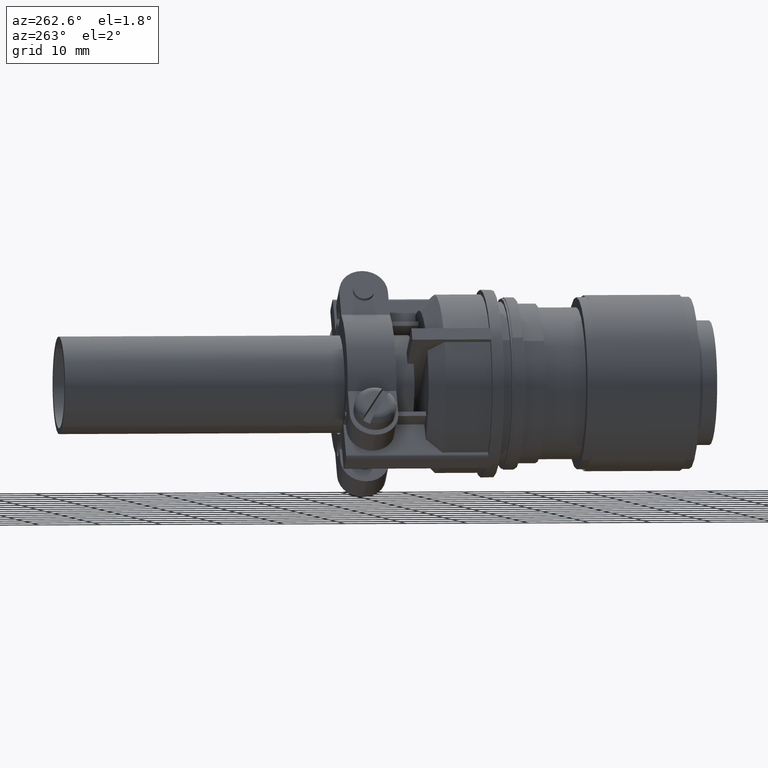
[diagram: clean part render]
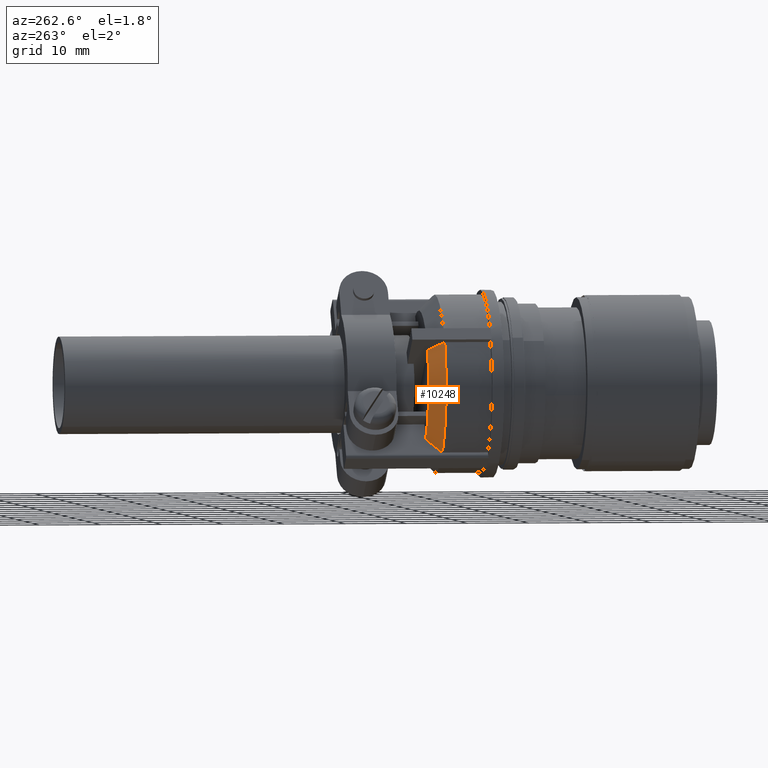
[diagram: same view with one face highlighted and labeled with its STEP entity id]
A machine part, auxiliary view. The second image highlights one B-rep face of the part: STEP entity #10248.
In plain terms, the highlighted conical surface has half-angle 45 deg.
Its self-contained STEP definition (entity closure, byte-faithful):
#1561 = AXIS2_PLACEMENT_3D ( 'NONE', #14280, #14281, #14282 ) ;
#2483 = AXIS2_PLACEMENT_3D ( 'NONE', #4530, #4533, #4536 ) ;
#3634 = CIRCLE ( 'NONE', #1561, 0.5699999999999996200 ) ;
#3728 = DIRECTION ( 'NONE',  ( 1.000000000000000000, 0.0000000000000000000, 0.0000000000000000000 ) ) ;
#3732 = DIRECTION ( 'NONE',  ( 0.0000000000000000000, 0.0000000000000000000, 1.000000000000000000 ) ) ;
#3736 = CARTESIAN_POINT ( 'NONE',  ( 0.0000000000000000000, 0.0000000000000000000, 2.321558866024211500 ) ) ;
#4498 = VERTEX_POINT ( 'NONE', #6352 ) ;
#4501 = CARTESIAN_POINT ( 'NONE',  ( -0.5650442460551206000, 0.07499999999999999700, 2.421558866024211100 ) ) ;
#4504 = CARTESIAN_POINT ( 'NONE',  ( -0.5313864996681226800, 0.07499999999999999700, 2.388193750355517100 ) ) ;
#4515 = CARTESIAN_POINT ( 'NONE',  ( -0.4977041407859930100, 0.07499999999999999700, 2.354853458255242100 ) ) ;
#4518 = CARTESIAN_POINT ( 'NONE',  ( -0.4639773701378114300, 0.07499999999999999700, 2.321558866024211500 ) ) ;
#4522 = CARTESIAN_POINT ( 'NONE',  ( -0.04249999999999997500, 0.5015327635614897900, 2.354880045189095700 ) ) ;
#4524 = CARTESIAN_POINT ( 'NONE',  ( -0.04249999999999998900, 0.5349769857735609000, 2.388215562566404300 ) ) ;
#4530 = CARTESIAN_POINT ( 'NONE',  ( 0.0000000000000000000, 0.0000000000000000000, 2.321558866024211500 ) ) ;
#4533 = DIRECTION ( 'NONE',  ( -0.0000000000000000000, -0.0000000000000000000, -1.000000000000000000 ) ) ;
#4536 = DIRECTION ( 'NONE',  ( -1.000000000000000000, 0.0000000000000000000, 0.0000000000000000000 ) ) ;
#4539 = CARTESIAN_POINT ( 'NONE',  ( -0.04249999999999998900, 0.5684133619119097200, 2.421558866024211100 ) ) ;
#4541 = CARTESIAN_POINT ( 'NONE',  ( -0.04249999999999997500, 0.4680745132988973800, 2.321558866024211500 ) ) ;
#5270 = CIRCLE ( 'NONE', #2483, 0.4699999999999996400 ) ;
#6352 = CARTESIAN_POINT ( 'NONE',  ( -0.5650442460551206000, 0.07499999999999999700, 2.421558866024211100 ) ) ;
#6518 = ORIENTED_EDGE ( 'NONE', *, *, #7691, .F. ) ;
#6519 = ORIENTED_EDGE ( 'NONE', *, *, #7693, .F. ) ;
#6520 = ORIENTED_EDGE ( 'NONE', *, *, #7695, .T. ) ;
#6521 = ORIENTED_EDGE ( 'NONE', *, *, #16805, .T. ) ;
#7691 = EDGE_CURVE ( 'NONE', #4498, #21427, #16922, .T. ) ;
#7693 = EDGE_CURVE ( 'NONE', #21427, #16297, #5270, .T. ) ;
#7695 = EDGE_CURVE ( 'NONE', #19761, #16297, #16976, .T. ) ;
#10248 = ADVANCED_FACE ( 'NONE', ( #18227 ), #18238, .T. ) ;
#11208 = EDGE_LOOP ( 'NONE', ( #6521, #6520, #6519, #6518 ) ) ;
#14218 = CARTESIAN_POINT ( 'NONE',  ( -0.04249999999999997500, 0.4680745132988973800, 2.321558866024211500 ) ) ;
#14280 = CARTESIAN_POINT ( 'NONE',  ( 0.0000000000000000000, 0.0000000000000000000, 2.421558866024211100 ) ) ;
#14281 = DIRECTION ( 'NONE',  ( -0.0000000000000000000, -0.0000000000000000000, -1.000000000000000000 ) ) ;
#14282 = DIRECTION ( 'NONE',  ( -1.000000000000000000, 0.0000000000000000000, 0.0000000000000000000 ) ) ;
#15042 = CARTESIAN_POINT ( 'NONE',  ( -0.04249999999999998900, 0.5684133619119097200, 2.421558866024211100 ) ) ;
#16297 = VERTEX_POINT ( 'NONE', #14218 ) ;
#16780 = AXIS2_PLACEMENT_3D ( 'NONE', #3736, #3732, #3728 ) ;
#16805 = EDGE_CURVE ( 'NONE', #4498, #19761, #3634, .T. ) ;
#16922 = B_SPLINE_CURVE_WITH_KNOTS ( 'NONE', 3,
 ( #4501, #4504, #4515, #4518 ),
 .UNSPECIFIED., .F., .F.,
 ( 4, 4 ),
 ( 0.01127757682451843900, 0.01488890234040121300 ),
 .UNSPECIFIED. ) ;
#16976 = B_SPLINE_CURVE_WITH_KNOTS ( 'NONE', 3,
 ( #4539, #4524, #4522, #4541 ),
 .UNSPECIFIED., .F., .F.,
 ( 4, 4 ),
 ( 0.01334217515841788400, 0.01694037003140656500 ),
 .UNSPECIFIED. ) ;
#17643 = CARTESIAN_POINT ( 'NONE',  ( -0.4639773701378114300, 0.07499999999999999700, 2.321558866024211500 ) ) ;
#18227 = FACE_OUTER_BOUND ( 'NONE', #11208, .T. ) ;
#18238 = CONICAL_SURFACE ( 'NONE', #16780, 0.4699999999999996400, 0.7853981633974482800 ) ;
#19761 = VERTEX_POINT ( 'NONE', #15042 ) ;
#21427 = VERTEX_POINT ( 'NONE', #17643 ) ;